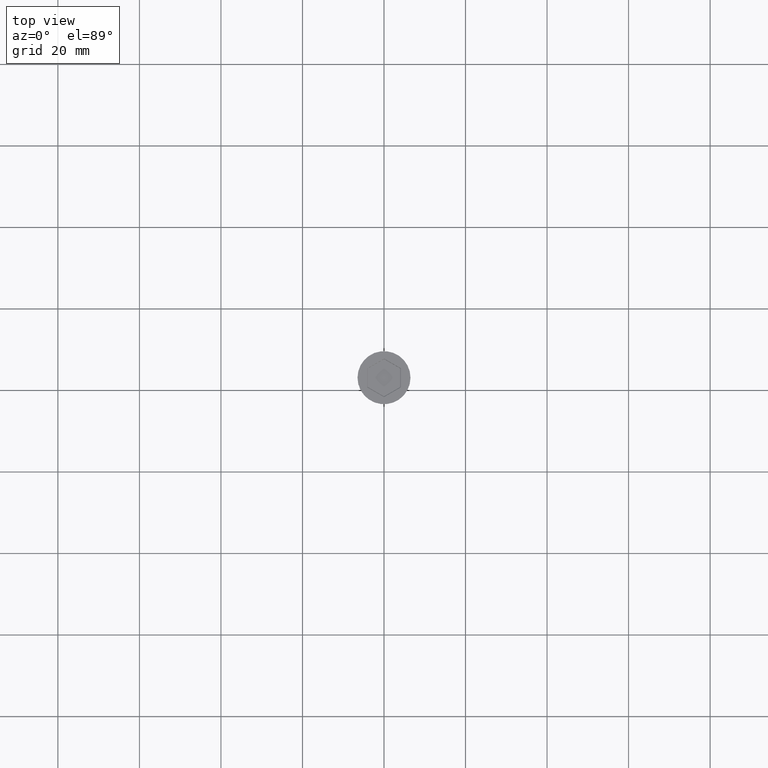
[diagram: clean part render]
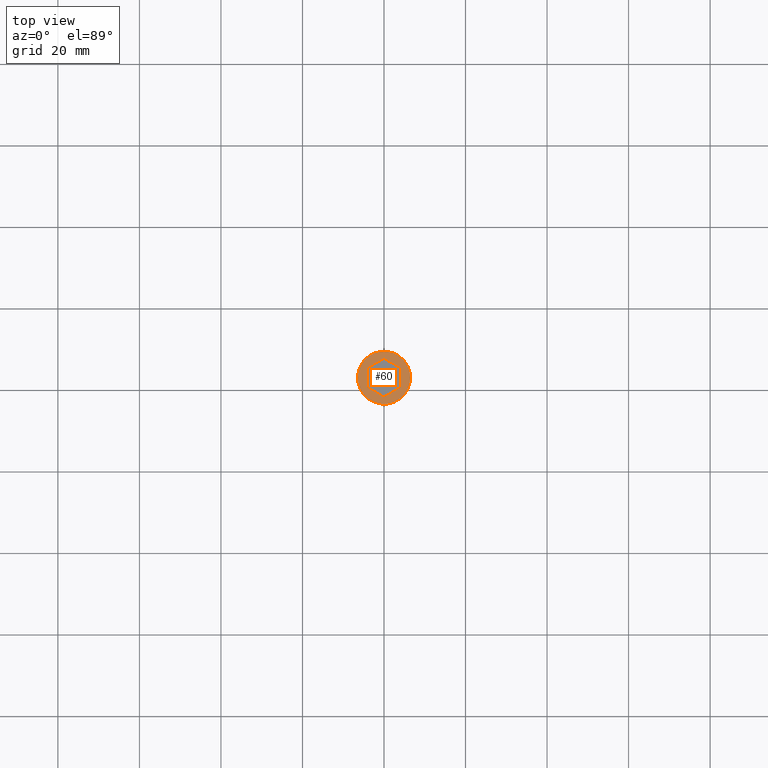
[diagram: same view with one face highlighted and labeled with its STEP entity id]
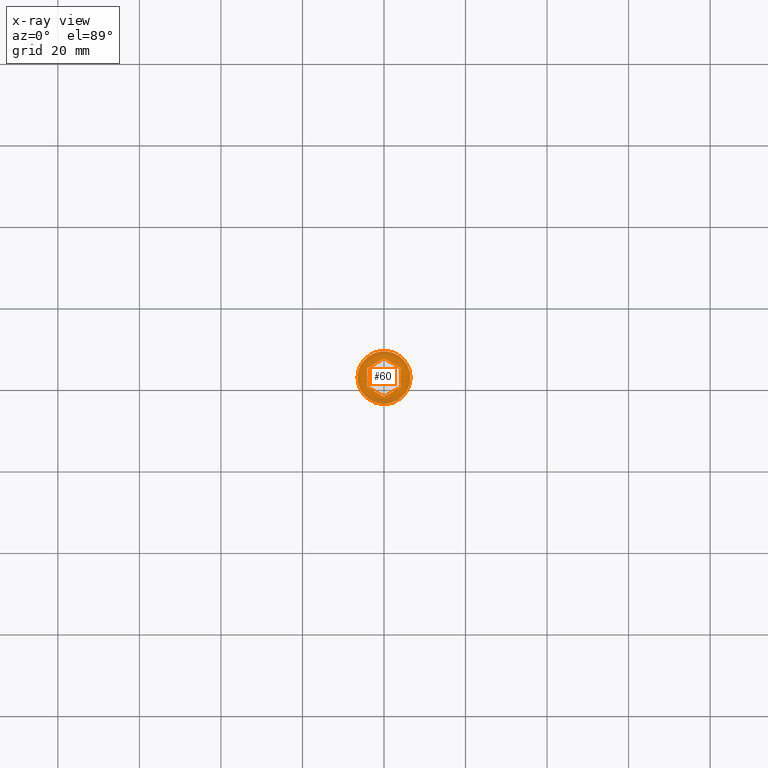
[diagram: x-ray of the same camera — body ghosted, the highlighted face saturated]
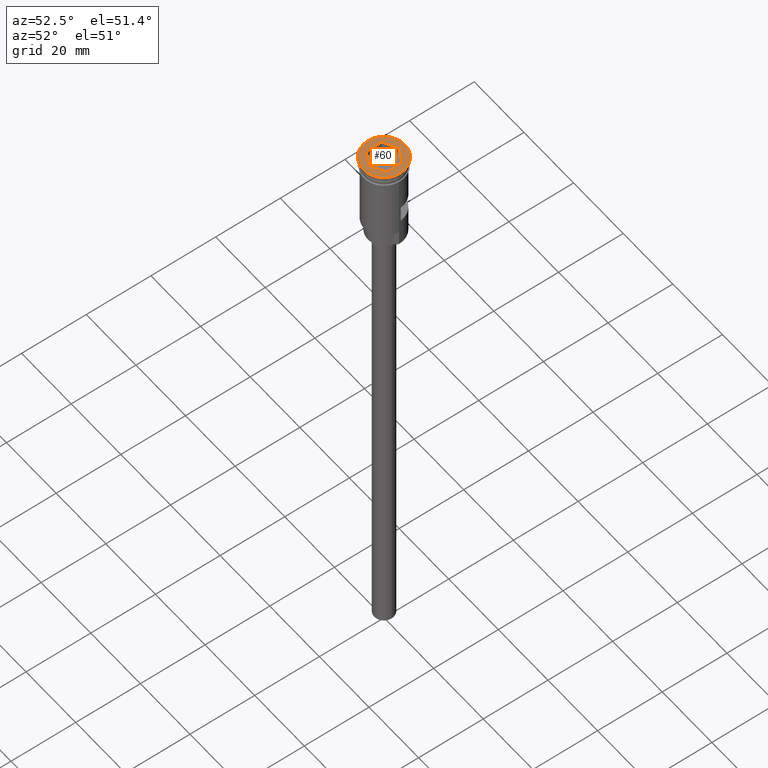
[diagram: same view with one face highlighted and labeled with its STEP entity id]
A machine part, top view. The second image highlights one B-rep face of the part: STEP entity #60.
The next image is the same camera in x-ray: the body ghosted, the highlighted face saturated — about 0% of this face is hidden behind the body in this view.
A second angle (auxiliary view) of the same face is appended — the face is thin or edge-on in the first view.
In plain terms, the highlighted planar face has unit normal (0, -0, 1).
Its self-contained STEP definition (entity closure, byte-faithful):
#21 = DIRECTION ( 'NONE',  ( 1.000000000000000000, 0.000000000000000000, 0.000000000000000000 ) ) ;
#48 = CARTESIAN_POINT ( 'NONE',  ( -0.04999999999998216288, 4.705404693895418156, 0.000000000000000000 ) ) ;
#60 = ADVANCED_FACE ( 'NONE', ( #136, #620 ), #988, .T. ) ;
#71 = VECTOR ( 'NONE', #359, 1000.000000000000114 ) ;
#75 = CARTESIAN_POINT ( 'NONE',  ( 6.500000000000000000, 0.000000000000000000, 0.000000000000000000 ) ) ;
#87 = CARTESIAN_POINT ( 'NONE',  ( 0.000000000000000000, 0.000000000000000000, 0.000000000000000000 ) ) ;
#106 = LINE ( 'NONE', #594, #1538 ) ;
#136 = FACE_BOUND ( 'NONE', #477, .T. ) ;
#146 = VERTEX_POINT ( 'NONE', #1292 ) ;
#177 = DIRECTION ( 'NONE',  ( 1.000000000000000000, 0.000000000000000000, 0.000000000000000000 ) ) ;
#190 = EDGE_CURVE ( 'NONE', #146, #1505, #106, .T. ) ;
#197 = VERTEX_POINT ( 'NONE', #1082 ) ;
#205 = CARTESIAN_POINT ( 'NONE',  ( 6.297488933682852254E-16, -4.734272207354889517, 0.000000000000000000 ) ) ;
#210 = EDGE_CURVE ( 'NONE', #482, #146, #337, .T. ) ;
#337 = LINE ( 'NONE', #854, #71 ) ;
#359 = DIRECTION ( 'NONE',  ( -0.8660254037844388186, 0.4999999999999997780, 0.000000000000000000 ) ) ;
#362 = VERTEX_POINT ( 'NONE', #1473 ) ;
#365 = ORIENTED_EDGE ( 'NONE', *, *, #900, .T. ) ;
#376 = CARTESIAN_POINT ( 'NONE',  ( 0.000000000000000000, 0.000000000000000000, 0.000000000000000000 ) ) ;
#377 = DIRECTION ( 'NONE',  ( 0.8660254037844387076, -0.4999999999999998890, 0.000000000000000000 ) ) ;
#379 = ORIENTED_EDGE ( 'NONE', *, *, #210, .T. ) ;
#457 = DIRECTION ( 'NONE',  ( 0.000000000000000000, 1.000000000000000000, 0.000000000000000000 ) ) ;
#477 = EDGE_LOOP ( 'NONE', ( #550, #1074, #627, #1521, #1104, #379 ) ) ;
#482 = VERTEX_POINT ( 'NONE', #205 ) ;
#483 = EDGE_LOOP ( 'NONE', ( #365, #494 ) ) ;
#494 = ORIENTED_EDGE ( 'NONE', *, *, #1175, .T. ) ;
#540 = DIRECTION ( 'NONE',  ( 0.8660254037844385966, 0.5000000000000001110, 0.000000000000000000 ) ) ;
#550 = ORIENTED_EDGE ( 'NONE', *, *, #190, .T. ) ;
#565 = EDGE_CURVE ( 'NONE', #1302, #197, #1445, .T. ) ;
#572 = CARTESIAN_POINT ( 'NONE',  ( 0.04999999999998334249, -4.705404693895418156, 0.000000000000000000 ) ) ;
#591 = CARTESIAN_POINT ( 'NONE',  ( 4.099999999999965006, -2.309401076758503368, 0.000000000000000000 ) ) ;
#594 = CARTESIAN_POINT ( 'NONE',  ( -4.099999999999965006, 2.309401076758502480, 0.000000000000000000 ) ) ;
#615 = VERTEX_POINT ( 'NONE', #732 ) ;
#620 = FACE_OUTER_BOUND ( 'NONE', #483, .T. ) ;
#626 = CARTESIAN_POINT ( 'NONE',  ( -4.099999999999965006, 2.367136103677443870, 0.000000000000000000 ) ) ;
#627 = ORIENTED_EDGE ( 'NONE', *, *, #791, .T. ) ;
#632 = CARTESIAN_POINT ( 'NONE',  ( 0.000000000000000000, 0.000000000000000000, 0.000000000000000000 ) ) ;
#706 = VECTOR ( 'NONE', #1080, 1000.000000000000000 ) ;
#720 = AXIS2_PLACEMENT_3D ( 'NONE', #632, #1121, #21 ) ;
#732 = CARTESIAN_POINT ( 'NONE',  ( -6.500000000000000000, 7.960204194457795477E-16, 0.000000000000000000 ) ) ;
#766 = VECTOR ( 'NONE', #377, 1000.000000000000000 ) ;
#787 = EDGE_CURVE ( 'NONE', #1505, #362, #1421, .T. ) ;
#791 = EDGE_CURVE ( 'NONE', #362, #1302, #904, .T. ) ;
#803 = DIRECTION ( 'NONE',  ( 1.000000000000000000, 0.000000000000000000, 0.000000000000000000 ) ) ;
#854 = CARTESIAN_POINT ( 'NONE',  ( -4.049999999999982059, -2.396003617136916564, 0.000000000000000000 ) ) ;
#866 = VECTOR ( 'NONE', #1551, 1000.000000000000114 ) ;
#900 = EDGE_CURVE ( 'NONE', #1600, #615, #1348, .T. ) ;
#904 = LINE ( 'NONE', #1522, #766 ) ;
#979 = EDGE_CURVE ( 'NONE', #197, #482, #1304, .T. ) ;
#988 = PLANE ( 'NONE',  #1249 ) ;
#1074 = ORIENTED_EDGE ( 'NONE', *, *, #787, .T. ) ;
#1080 = DIRECTION ( 'NONE',  ( 0.000000000000000000, -1.000000000000000000, -0.000000000000000000 ) ) ;
#1082 = CARTESIAN_POINT ( 'NONE',  ( 4.099999999999965006, -2.367136103677444314, 0.000000000000000000 ) ) ;
#1104 = ORIENTED_EDGE ( 'NONE', *, *, #979, .T. ) ;
#1121 = DIRECTION ( 'NONE',  ( -0.000000000000000000, -0.000000000000000000, 1.000000000000000000 ) ) ;
#1173 = DIRECTION ( 'NONE',  ( -0.000000000000000000, -0.000000000000000000, 1.000000000000000000 ) ) ;
#1175 = EDGE_CURVE ( 'NONE', #615, #1600, #1234, .T. ) ;
#1222 = VECTOR ( 'NONE', #540, 1000.000000000000114 ) ;
#1234 = CIRCLE ( 'NONE', #720, 6.500000000000000000 ) ;
#1249 = AXIS2_PLACEMENT_3D ( 'NONE', #376, #1362, #177 ) ;
#1266 = CARTESIAN_POINT ( 'NONE',  ( 4.099999999999965006, 2.367136103677447423, 0.000000000000000000 ) ) ;
#1278 = AXIS2_PLACEMENT_3D ( 'NONE', #87, #1173, #803 ) ;
#1292 = CARTESIAN_POINT ( 'NONE',  ( -4.099999999999965006, -2.367136103677445202, 0.000000000000000000 ) ) ;
#1302 = VERTEX_POINT ( 'NONE', #1266 ) ;
#1304 = LINE ( 'NONE', #572, #866 ) ;
#1348 = CIRCLE ( 'NONE', #1278, 6.500000000000000000 ) ;
#1362 = DIRECTION ( 'NONE',  ( 0.000000000000000000, -0.000000000000000000, 1.000000000000000000 ) ) ;
#1421 = LINE ( 'NONE', #48, #1222 ) ;
#1445 = LINE ( 'NONE', #591, #706 ) ;
#1473 = CARTESIAN_POINT ( 'NONE',  ( 2.171479865133627081E-15, 4.734272207354890405, 0.000000000000000000 ) ) ;
#1505 = VERTEX_POINT ( 'NONE', #626 ) ;
#1521 = ORIENTED_EDGE ( 'NONE', *, *, #565, .T. ) ;
#1522 = CARTESIAN_POINT ( 'NONE',  ( 4.049999999999982947, 2.396003617136917896, 0.000000000000000000 ) ) ;
#1538 = VECTOR ( 'NONE', #457, 1000.000000000000000 ) ;
#1551 = DIRECTION ( 'NONE',  ( -0.8660254037844385966, -0.5000000000000001110, 0.000000000000000000 ) ) ;
#1600 = VERTEX_POINT ( 'NONE', #75 ) ;